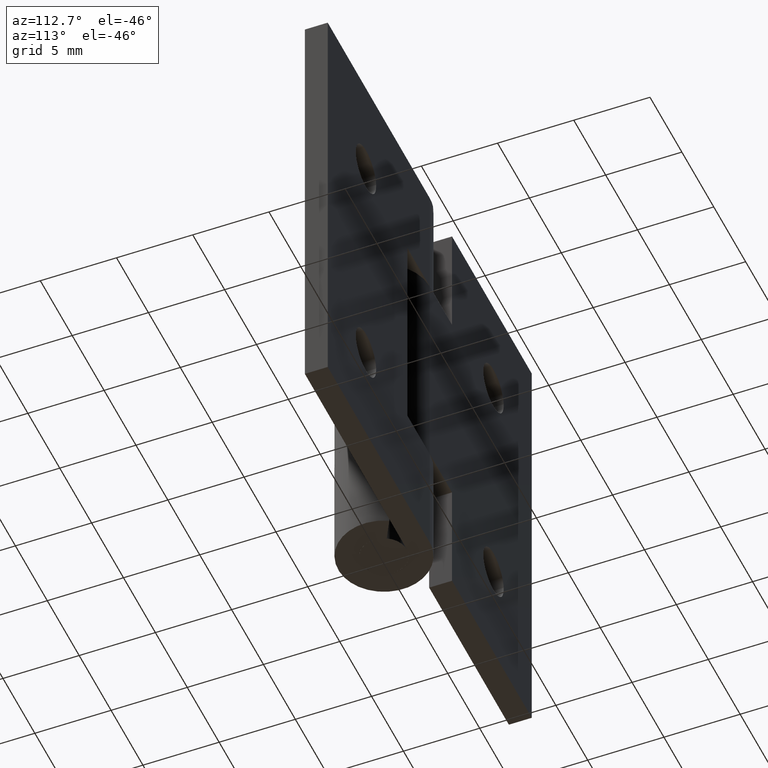
[diagram: clean part render]
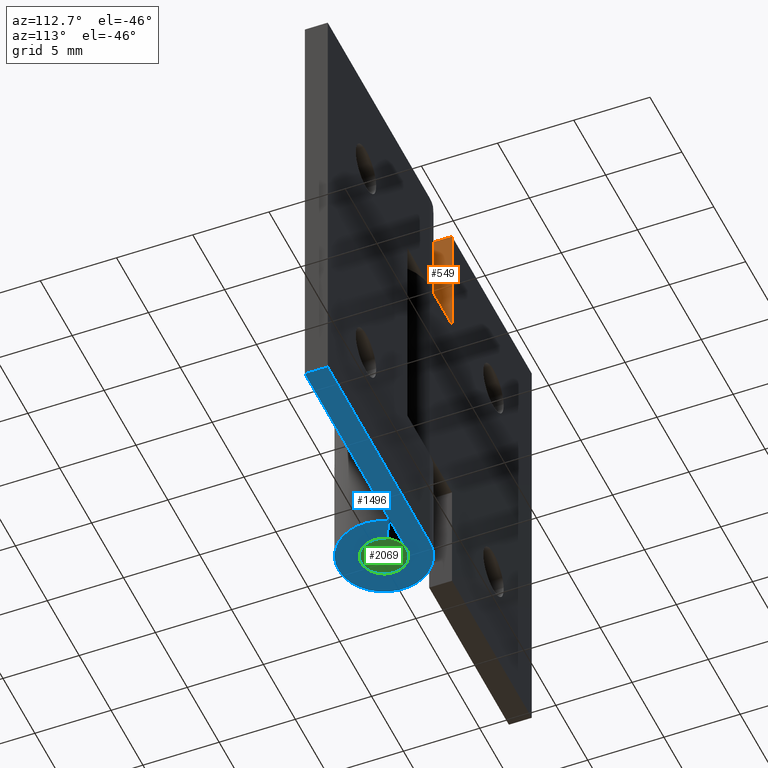
[diagram: same view with three faces highlighted in distinct colors, each labeled with its STEP entity id]
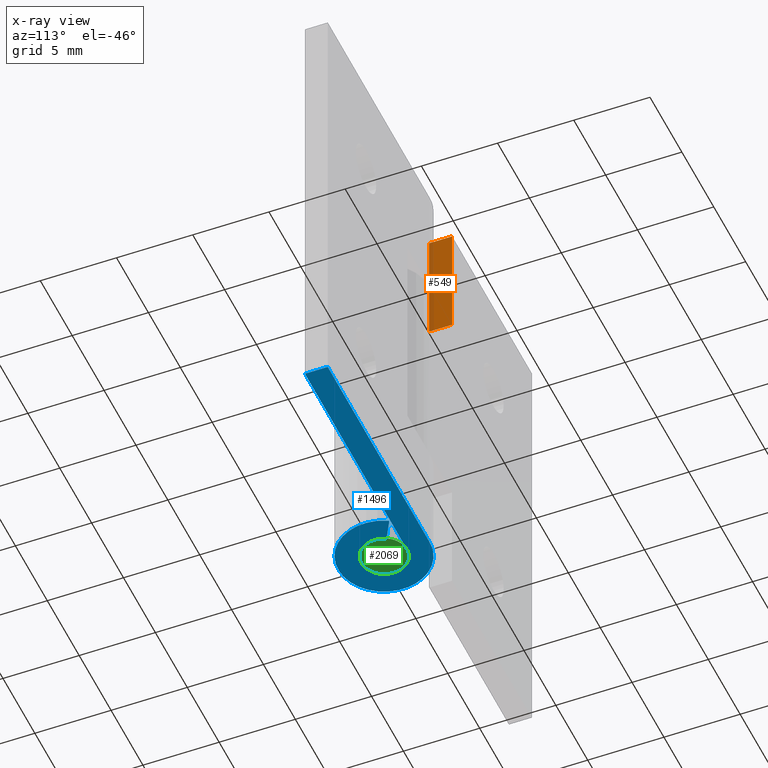
[diagram: x-ray of the same camera — body ghosted, the three highlighted faces saturated]
A machine part, auxiliary view with three faces highlighted in distinct colors.
The next image is the same camera in x-ray (body ghosted, the three faces saturated) — at least one of them is partly hidden behind the body in this view.
Their STEP definitions:

[orange] entity #549 — the highlighted face is a freeform B-spline surface patch.
#514=CARTESIAN_POINT('',(-3.500000000000100,1.425075002907234,30.384614835225921));
#515=CARTESIAN_POINT('',(-3.500000000000100,1.425075002907234,21.915387958243858));
#516=CARTESIAN_POINT('',(-3.500000000000100,3.074925037325847,30.384614835225921));
#517=CARTESIAN_POINT('',(-3.500000000000100,3.074925037325847,21.915387958243858));
#518=B_SPLINE_SURFACE_WITH_KNOTS('',1,1,((#514,#516),(#515,#517)),.UNSPECIFIED.,.F.,.F.,.U.,(2,2),(2,2),(0.0,8.469226876982059),(0.041708334948495,0.958291687403247),.UNSPECIFIED.);
#519=CARTESIAN_POINT('',(-3.500000000000100,1.499999999999946,30.0));
#520=VERTEX_POINT('',#519);
#521=CARTESIAN_POINT('',(-3.500000000000100,1.499999999999946,22.300002999999801));
#522=VERTEX_POINT('',#521);
#523=CARTESIAN_POINT('',(-3.500000000000100,1.499999999999946,30.0));
#524=CARTESIAN_POINT('',(-3.500000000000100,1.499999999999946,22.300002999999801));
#525=QUASI_UNIFORM_CURVE('',1,(#523,#524),.UNSPECIFIED.,.F.,.U.);
#526=EDGE_CURVE('',#520,#522,#525,.T.);
#527=ORIENTED_EDGE('',*,*,#526,.T.);
#528=CARTESIAN_POINT('',(-3.500000000000100,3.0,22.300002999999801));
#529=VERTEX_POINT('',#528);
#530=CARTESIAN_POINT('',(-3.500000000000100,1.499999999999946,22.300002999999801));
#531=CARTESIAN_POINT('',(-3.500000000000100,3.0,22.300002999999801));
#532=QUASI_UNIFORM_CURVE('',1,(#530,#531),.UNSPECIFIED.,.F.,.U.);
#533=EDGE_CURVE('',#522,#529,#532,.T.);
#534=ORIENTED_EDGE('',*,*,#533,.T.);
#535=CARTESIAN_POINT('',(-3.500000000000100,3.0,30.0));
#536=VERTEX_POINT('',#535);
#537=CARTESIAN_POINT('',(-3.500000000000100,3.0,30.0));
#538=CARTESIAN_POINT('',(-3.500000000000100,3.0,22.300002999999801));
#539=QUASI_UNIFORM_CURVE('',1,(#537,#538),.UNSPECIFIED.,.F.,.U.);
#540=EDGE_CURVE('',#536,#529,#539,.T.);
#541=ORIENTED_EDGE('',*,*,#540,.F.);
#542=CARTESIAN_POINT('',(-3.500000000000100,1.499999999999946,30.0));
#543=CARTESIAN_POINT('',(-3.500000000000100,3.0,30.0));
#544=QUASI_UNIFORM_CURVE('',1,(#542,#543),.UNSPECIFIED.,.F.,.U.);
#545=EDGE_CURVE('',#520,#536,#544,.T.);
#546=ORIENTED_EDGE('',*,*,#545,.F.);
#547=EDGE_LOOP('',(#527,#534,#541,#546));
#548=FACE_OUTER_BOUND('',#547,.T.);
#549=ADVANCED_FACE('',(#548),#518,.T.);

[blue] entity #1496 — the highlighted face is a freeform B-spline surface patch.
#1419=CARTESIAN_POINT('',(-3.948997944063291,-3.299492218395502,0.0));
#1420=CARTESIAN_POINT('',(16.949047998051519,-3.299492218395502,0.0));
#1421=CARTESIAN_POINT('',(-3.948997944063291,3.299690264913209,0.0));
#1422=CARTESIAN_POINT('',(16.949047998051519,3.299690264913209,0.0));
#1423=B_SPLINE_SURFACE_WITH_KNOTS('',1,1,((#1419,#1421),(#1420,#1422)),.UNSPECIFIED.,.F.,.F.,.U.,(2,2),(2,2),(0.0,20.898045942114809),(0.0,6.599182483308711),.UNSPECIFIED.);
#1424=CARTESIAN_POINT('',(1.313154598666890,0.725000000000000,0.0));
#1425=VERTEX_POINT('',#1424);
#1426=CARTESIAN_POINT('',(0.0,1.500000000000000,0.0));
#1427=VERTEX_POINT('',#1426);
#1428=CARTESIAN_POINT('',(1.313154598666890,0.725000000000000,0.0));
#1429=CARTESIAN_POINT('',(1.866715792252885,-0.277636451035838,0.0));
#1430=CARTESIAN_POINT('',(1.045325295443045,-1.075776476182162,0.0));
#1431=CARTESIAN_POINT('',(0.223934798633207,-1.873916501328486,0.0));
#1432=CARTESIAN_POINT('',(-0.762397534098844,-1.291801068276382,0.0));
#1433=CARTESIAN_POINT('',(-1.748729866830896,-0.709685635224277,0.0));
#1434=CARTESIAN_POINT('',(-1.447014444021651,0.395157182387861,0.0));
#1435=CARTESIAN_POINT('',(-1.145299021212405,1.500000000000000,0.0));
#1436=CARTESIAN_POINT('',(0.0,1.500000000000000,0.0));
#1444=(BOUNDED_CURVE()B_SPLINE_CURVE(2,(#1428,#1429,#1430,#1431,#1432,#1433,#1434,#1435,#1436),.UNSPECIFIED.,.F.,.U.)B_SPLINE_CURVE_WITH_KNOTS((3,2,2,2,3),(0.0,0.250000000000000,0.500000000000000,0.750000000000000,1.0),.UNSPECIFIED.)CURVE()GEOMETRIC_REPRESENTATION_ITEM()RATIONAL_B_SPLINE_CURVE((1.0,0.794807562115481,1.0,0.794807562115481,1.0,0.794807562115481,1.0,0.794807562115481,1.0))REPRESENTATION_ITEM(''));
#1445=EDGE_CURVE('',#1425,#1427,#1444,.T.);
#1446=ORIENTED_EDGE('',*,*,#1445,.F.);
#1447=CARTESIAN_POINT('',(2.626309197333780,1.450000000000000,0.0));
#1448=VERTEX_POINT('',#1447);
#1449=CARTESIAN_POINT('',(2.626309197333780,1.450000000000000,0.0));
#1450=CARTESIAN_POINT('',(1.313154598666890,0.725000000000000,0.0));
#1451=QUASI_UNIFORM_CURVE('',1,(#1449,#1450),.UNSPECIFIED.,.F.,.U.);
#1452=EDGE_CURVE('',#1448,#1425,#1451,.T.);
#1453=ORIENTED_EDGE('',*,*,#1452,.F.);
#1454=CARTESIAN_POINT('',(0.0,3.0,0.0));
#1455=VERTEX_POINT('',#1454);
#1456=CARTESIAN_POINT('',(2.626309197333780,1.450000000000000,0.0));
#1457=CARTESIAN_POINT('',(3.733431584505770,-0.555272902071675,0.0));
#1458=CARTESIAN_POINT('',(2.090650590886091,-2.151552952364324,0.0));
#1459=CARTESIAN_POINT('',(0.447869597266413,-3.747833002656972,0.0));
#1460=CARTESIAN_POINT('',(-1.524795068197689,-2.583602136552764,0.0));
#1461=CARTESIAN_POINT('',(-3.497459733661792,-1.419371270448555,0.0));
#1462=CARTESIAN_POINT('',(-2.894028888043301,0.790314364775722,0.0));
#1463=CARTESIAN_POINT('',(-2.290598042424809,3.000000000000000,0.0));
#1464=CARTESIAN_POINT('',(0.0,3.0,0.0));
#1472=(BOUNDED_CURVE()B_SPLINE_CURVE(2,(#1456,#1457,#1458,#1459,#1460,#1461,#1462,#1463,#1464),.UNSPECIFIED.,.F.,.U.)B_SPLINE_CURVE_WITH_KNOTS((3,2,2,2,3),(0.0,0.250000000000000,0.500000000000000,0.750000000000000,1.0),.UNSPECIFIED.)CURVE()GEOMETRIC_REPRESENTATION_ITEM()RATIONAL_B_SPLINE_CURVE((1.0,0.794807562115481,1.0,0.794807562115481,1.0,0.794807562115481,1.0,0.794807562115481,1.0))REPRESENTATION_ITEM(''));
#1473=EDGE_CURVE('',#1448,#1455,#1472,.T.);
#1474=ORIENTED_EDGE('',*,*,#1473,.T.);
#1475=CARTESIAN_POINT('',(16.0,3.0,0.0));
#1476=VERTEX_POINT('',#1475);
#1477=CARTESIAN_POINT('',(16.0,3.0,0.0));
#1478=CARTESIAN_POINT('',(0.0,3.0,0.0));
#1479=QUASI_UNIFORM_CURVE('',1,(#1477,#1478),.UNSPECIFIED.,.F.,.U.);
#1480=EDGE_CURVE('',#1476,#1455,#1479,.T.);
#1481=ORIENTED_EDGE('',*,*,#1480,.F.);
#1482=CARTESIAN_POINT('',(16.0,1.500000000000000,0.0));
#1483=VERTEX_POINT('',#1482);
#1484=CARTESIAN_POINT('',(16.0,1.500000000000000,0.0));
#1485=CARTESIAN_POINT('',(16.0,3.0,0.0));
#1486=QUASI_UNIFORM_CURVE('',1,(#1484,#1485),.UNSPECIFIED.,.F.,.U.);
#1487=EDGE_CURVE('',#1483,#1476,#1486,.T.);
#1488=ORIENTED_EDGE('',*,*,#1487,.F.);
#1489=CARTESIAN_POINT('',(0.0,1.500000000000000,0.0));
#1490=CARTESIAN_POINT('',(16.0,1.500000000000000,0.0));
#1491=QUASI_UNIFORM_CURVE('',1,(#1489,#1490),.UNSPECIFIED.,.F.,.U.);
#1492=EDGE_CURVE('',#1427,#1483,#1491,.T.);
#1493=ORIENTED_EDGE('',*,*,#1492,.F.);
#1494=EDGE_LOOP('',(#1446,#1453,#1474,#1481,#1488,#1493));
#1495=FACE_OUTER_BOUND('',#1494,.T.);
#1496=ADVANCED_FACE('',(#1495),#1423,.F.);

[green] entity #2069 — the highlighted face is a freeform B-spline surface patch.
#1899=CARTESIAN_POINT('',(0.117688643664310,-1.495376000593983,-1.110223E-015));
#1900=VERTEX_POINT('',#1899);
#1906=CARTESIAN_POINT('',(1.500000000000000,0.0,0.0));
#1907=VERTEX_POINT('',#1906);
#1908=CARTESIAN_POINT('',(1.500000000000000,0.0,0.0));
#1909=CARTESIAN_POINT('',(1.500000000000001,-1.386585737352365,0.0));
#1910=CARTESIAN_POINT('',(0.117688643664310,-1.495376000593983,-1.110223E-015));
#1918=(BOUNDED_CURVE()B_SPLINE_CURVE(2,(#1908,#1909,#1910),.UNSPECIFIED.,.F.,.U.)B_SPLINE_CURVE_WITH_KNOTS((3,3),(0.0,0.236331300616135),.UNSPECIFIED.)CURVE()GEOMETRIC_REPRESENTATION_ITEM()RATIONAL_B_SPLINE_CURVE((1.0,0.723120658624682,0.969723356137106))REPRESENTATION_ITEM(''));
#1919=EDGE_CURVE('',#1907,#1900,#1918,.T.);
#1921=CARTESIAN_POINT('',(-0.117688643664310,1.495376000593983,-1.110223E-015));
#1922=VERTEX_POINT('',#1921);
#1923=CARTESIAN_POINT('',(-0.117688643664310,1.495376000593983,-1.110223E-015));
#1924=CARTESIAN_POINT('',(-0.058935160584383,1.500000000000000,0.0));
#1925=CARTESIAN_POINT('',(0.0,1.500000000000000,0.0));
#1926=CARTESIAN_POINT('',(1.500000000000000,1.500000000000000,0.0));
#1927=CARTESIAN_POINT('',(1.500000000000000,0.0,0.0));
#1935=(BOUNDED_CURVE()B_SPLINE_CURVE(2,(#1923,#1924,#1925,#1926,#1927),.UNSPECIFIED.,.F.,.U.)B_SPLINE_CURVE_WITH_KNOTS((3,2,3),(0.736331300616135,0.750000000000000,1.0),.UNSPECIFIED.)CURVE()GEOMETRIC_REPRESENTATION_ITEM()RATIONAL_B_SPLINE_CURVE((0.969723356137106,0.983986122561865,1.0,0.707106781186548,1.0))REPRESENTATION_ITEM(''));
#1936=EDGE_CURVE('',#1922,#1907,#1935,.T.);
#2012=CARTESIAN_POINT('',(-1.500000000000000,0.0,0.0));
#2013=VERTEX_POINT('',#2012);
#2014=CARTESIAN_POINT('',(-1.500000000000000,0.0,0.0));
#2015=CARTESIAN_POINT('',(-1.500000000000001,1.386585737352365,0.0));
#2016=CARTESIAN_POINT('',(-0.117688643664310,1.495376000593983,-1.110223E-015));
#2024=(BOUNDED_CURVE()B_SPLINE_CURVE(2,(#2014,#2015,#2016),.UNSPECIFIED.,.F.,.U.)B_SPLINE_CURVE_WITH_KNOTS((3,3),(0.500000000000000,0.736331300616135),.UNSPECIFIED.)CURVE()GEOMETRIC_REPRESENTATION_ITEM()RATIONAL_B_SPLINE_CURVE((1.0,0.723120658624682,0.969723356137106))REPRESENTATION_ITEM(''));
#2025=EDGE_CURVE('',#2013,#1922,#2024,.T.);
#2027=CARTESIAN_POINT('',(0.117688643664310,-1.495376000593983,-1.110223E-015));
#2028=CARTESIAN_POINT('',(0.058935160584383,-1.500000000000000,0.0));
#2029=CARTESIAN_POINT('',(0.0,-1.500000000000000,0.0));
#2030=CARTESIAN_POINT('',(-1.500000000000000,-1.500000000000000,0.0));
#2031=CARTESIAN_POINT('',(-1.500000000000000,0.0,0.0));
#2039=(BOUNDED_CURVE()B_SPLINE_CURVE(2,(#2027,#2028,#2029,#2030,#2031),.UNSPECIFIED.,.F.,.U.)B_SPLINE_CURVE_WITH_KNOTS((3,2,3),(0.236331300616135,0.250000000000000,0.500000000000000),.UNSPECIFIED.)CURVE()GEOMETRIC_REPRESENTATION_ITEM()RATIONAL_B_SPLINE_CURVE((0.969723356137106,0.983986122561865,1.0,0.707106781186548,1.0))REPRESENTATION_ITEM(''));
#2040=EDGE_CURVE('',#1900,#2013,#2039,.T.);
#2058=CARTESIAN_POINT('',(-1.649849994185418,-1.649392129090191,0.0));
#2059=CARTESIAN_POINT('',(1.649850074651688,-1.649392129090191,0.0));
#2060=CARTESIAN_POINT('',(-1.649849994185418,1.649392209556462,0.0));
#2061=CARTESIAN_POINT('',(1.649850074651688,1.649392209556462,0.0));
#2062=B_SPLINE_SURFACE_WITH_KNOTS('',1,1,((#2058,#2060),(#2059,#2061)),.UNSPECIFIED.,.F.,.F.,.U.,(2,2),(2,2),(0.0,3.299700068837106),(0.0,3.298784338646652),.UNSPECIFIED.);
#2063=ORIENTED_EDGE('',*,*,#1919,.T.);
#2064=ORIENTED_EDGE('',*,*,#2040,.T.);
#2065=ORIENTED_EDGE('',*,*,#2025,.T.);
#2066=ORIENTED_EDGE('',*,*,#1936,.T.);
#2067=EDGE_LOOP('',(#2063,#2064,#2065,#2066));
#2068=FACE_OUTER_BOUND('',#2067,.T.);
#2069=ADVANCED_FACE('',(#2068),#2062,.F.);